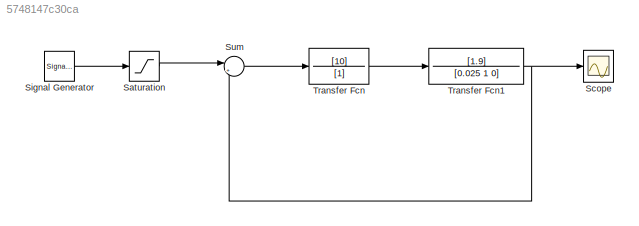
MODEL slx_5748147c30ca
KIND model
CONFIG AbsTol = auto
CONFIG EnableMultiTasking = off
CONFIG FixedStep = auto
CONFIG MaxStep = auto
CONFIG MinStep = auto
CONFIG RelTol = 1e-3
CONFIG SampleTimeConstraint = Unconstrained
CONFIG Solver = VariableStepAuto
CONFIG SolverName = VariableStepAuto
CONFIG StartTime = 0.0
CONFIG StopTime = 10.0
BLOCK [Saturate] Saturation
  InputPortMap = u0
  LowerLimit = -0.7
  Ports = [1, 1]
  UpperLimit = 0.7
BLOCK [Scope] Scope
  Floating = off
  NumInputPorts = 1
  Ports = [1]
  ScopeSpecificationString = Simulink.scopes.TimeScopeBlockCfg('CurrentConfiguration', extmgr.ConfigurationSet(extmgr.Configuration('Core','General UI',true),extmgr.Configuration('Core','Source UI',true),extmgr.Configuration('Sources','WiredSimulink',true),extmgr.Configuration('Visuals','Time Domain',true,'SerializedDisplays',{struct('MinYLimReal','-0.87746','MaxYLimReal','0.87746','YLabelReal','','MinYLimMag','0.00000','MaxY...<+1363ch>
BLOCK [SignalGenerator] Signal Generator
  Ports = [0, 1]
  Units = rad/sec
BLOCK [Sum] Sum
  IconShape = round
  InputSameDT = off
  Inputs = |+-
  OutDataTypeStr = Inherit: Inherit via internal rule
  Ports = [2, 1]
  SaturateOnIntegerOverflow = off
BLOCK [TransferFcn] Transfer Fcn
  Denominator = [1]
  Numerator = [10]
BLOCK [TransferFcn] Transfer Fcn1
  Denominator = [0.025 1 0]
  Numerator = [1.9]
LINE Saturation:1 -> Sum:1
LINE Signal Generator:1 -> Saturation:1
LINE Sum:1 -> Transfer Fcn:1
NET Transfer Fcn1:1 -> Scope:1, Sum:2
LINE Transfer Fcn:1 -> Transfer Fcn1:1
note: NET lines group one-source signal fan-out (src -> all destinations, sorted); 1:1 wires keep LINE
